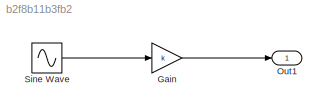
MODEL slx_b2f8b11b3fb2
KIND model
CONFIG AbsTol = auto
CONFIG EnableMultiTasking = off
CONFIG FixedStep = auto
CONFIG MaxStep = auto
CONFIG MinStep = auto
CONFIG RelTol = 1e-3
CONFIG SampleTimeConstraint = Unconstrained
CONFIG SolverName = VariableStepAuto
CONFIG StartTime = 0.0
CONFIG StopTime = 10.0
BLOCK [Gain] Gain
  Gain = k
BLOCK [Outport] Out1
BLOCK [Sin] Sine Wave
  SampleTime = 0
LINE Gain:1 -> Out1:1
LINE Sine Wave:1 -> Gain:1
